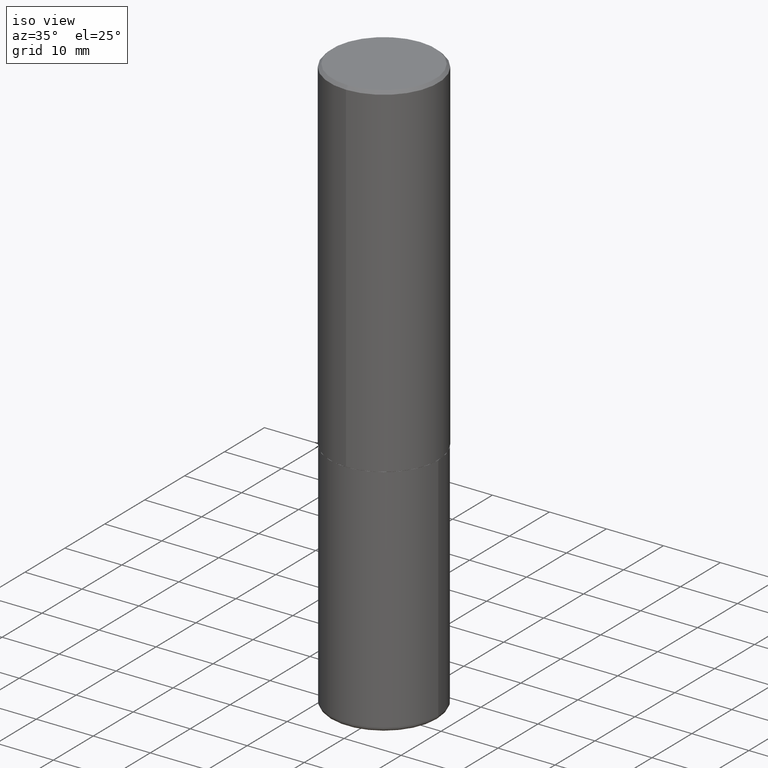
[diagram: clean part render]
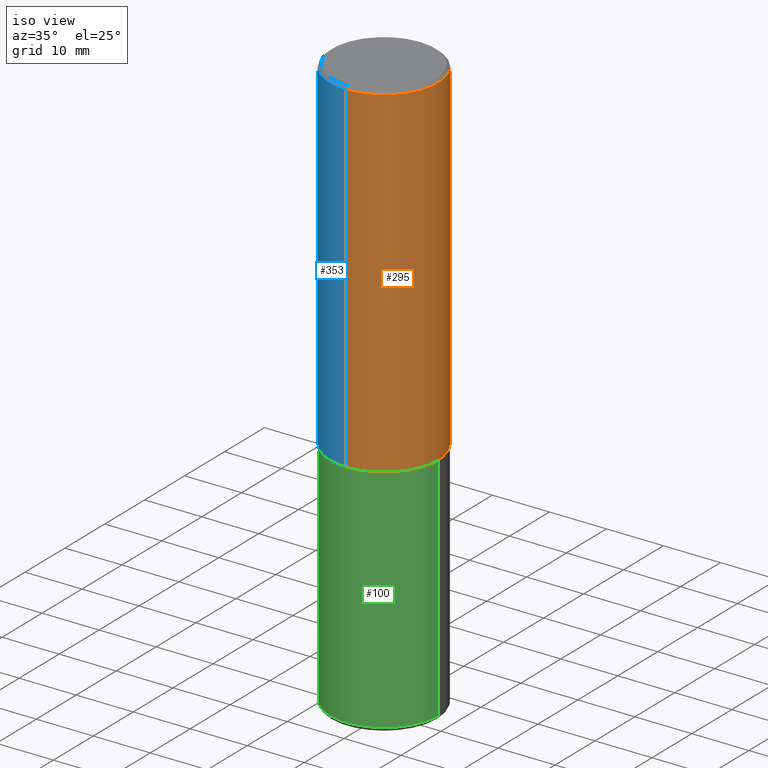
[diagram: same view with three faces highlighted in distinct colors, each labeled with its STEP entity id]
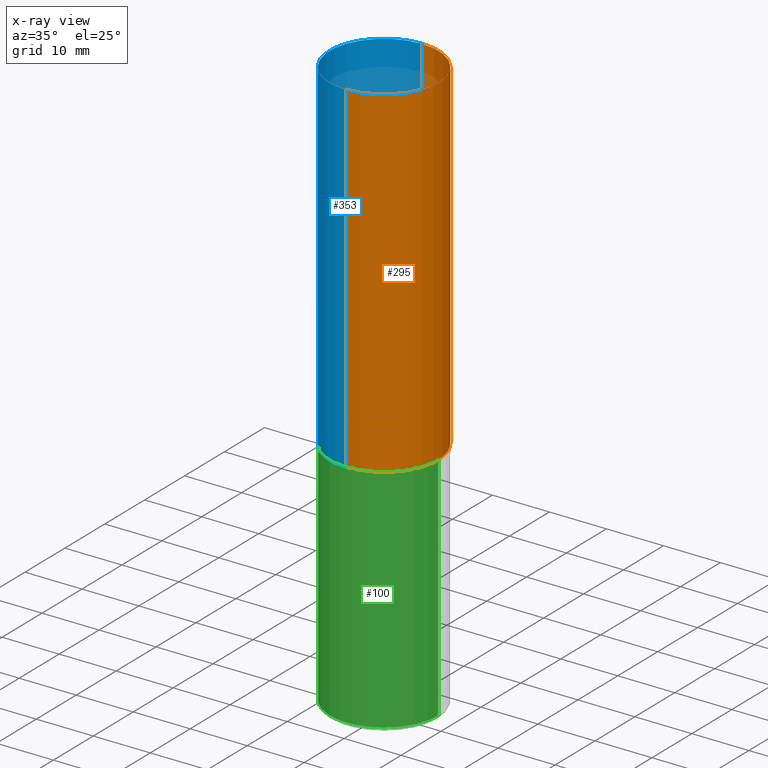
[diagram: x-ray of the same camera — body ghosted, the three highlighted faces saturated]
A machine part, iso view with three faces highlighted in distinct colors.
The next image is the same camera in x-ray (body ghosted, the three faces saturated) — at least one of them is partly hidden behind the body in this view.
Their STEP definitions:

[orange] entity #295 — the highlighted cylindrical surface (partial cylindrical patch) has radius 9.525 mm, axis along (-0, 0, 1).
#6 = VECTOR ( 'NONE', #133, 39.37007874015748143 ) ;
#10 = LINE ( 'NONE', #141, #6 ) ;
#24 = ORIENTED_EDGE ( 'NONE', *, *, #189, .T. ) ;
#30 = FACE_OUTER_BOUND ( 'NONE', #207, .T. ) ;
#37 = VECTOR ( 'NONE', #83, 39.37007874015748143 ) ;
#57 = DIRECTION ( 'NONE',  ( -6.982962677686266711E-15, -1.000000000000000000, 3.492762315123933556E-15 ) ) ;
#81 = ORIENTED_EDGE ( 'NONE', *, *, #264, .F. ) ;
#83 = DIRECTION ( 'NONE',  ( -2.444574305229161733E-29, 3.492762315123933951E-15, 1.000000000000000000 ) ) ;
#84 = ORIENTED_EDGE ( 'NONE', *, *, #303, .T. ) ;
#87 = VERTEX_POINT ( 'NONE', #270 ) ;
#131 = CARTESIAN_POINT ( 'NONE',  ( 0.000000000000000000, 0.000000000000000000, 0.000000000000000000 ) ) ;
#133 = DIRECTION ( 'NONE',  ( -2.444574305229161733E-29, 3.492762315123933951E-15, 1.000000000000000000 ) ) ;
#141 = CARTESIAN_POINT ( 'NONE',  ( -2.618611004132351200E-15, -0.3750000000000001665, 1.309785868171475725E-15 ) ) ;
#155 = AXIS2_PLACEMENT_3D ( 'NONE', #182, #284, #257 ) ;
#158 = DIRECTION ( 'NONE',  ( -2.444574305229161733E-29, 3.492762315123933951E-15, 1.000000000000000000 ) ) ;
#182 = CARTESIAN_POINT ( 'NONE',  ( 5.803419400614030161E-29, -8.291817736104219412E-15, -2.373999999999999666 ) ) ;
#189 = EDGE_CURVE ( 'NONE', #220, #87, #223, .T. ) ;
#190 = CARTESIAN_POINT ( 'NONE',  ( -2.618611004132293613E-15, -0.3750000000000085487, -2.373999999999998334 ) ) ;
#207 = EDGE_LOOP ( 'NONE', ( #84, #24, #81, #340 ) ) ;
#220 = VERTEX_POINT ( 'NONE', #407 ) ;
#223 = LINE ( 'NONE', #229, #37 ) ;
#229 = CARTESIAN_POINT ( 'NONE',  ( 2.664535259100376486E-15, 0.3750000000000001665, -1.309785868171475725E-15 ) ) ;
#249 = VERTEX_POINT ( 'NONE', #382 ) ;
#257 = DIRECTION ( 'NONE',  ( -6.982962677686266711E-15, -1.000000000000000000, 3.642463991552348591E-15 ) ) ;
#264 = EDGE_CURVE ( 'NONE', #249, #87, #301, .T. ) ;
#270 = CARTESIAN_POINT ( 'NONE',  ( 2.618611004132350411E-15, 0.3749999999999999445, -0.02000000000000141595 ) ) ;
#278 = VERTEX_POINT ( 'NONE', #190 ) ;
#284 = DIRECTION ( 'NONE',  ( -2.444574305229161733E-29, 3.492762315123933951E-15, 1.000000000000000000 ) ) ;
#295 = ADVANCED_FACE ( 'NONE', ( #30 ), #405, .T. ) ;
#296 = CARTESIAN_POINT ( 'NONE',  ( 4.889148610458350090E-31, -6.985524630247905373E-17, -0.02000000000000010797 ) ) ;
#301 = CIRCLE ( 'NONE', #322, 0.3750000000000000555 ) ;
#303 = EDGE_CURVE ( 'NONE', #278, #220, #366, .T. ) ;
#321 = AXIS2_PLACEMENT_3D ( 'NONE', #131, #345, #57 ) ;
#322 = AXIS2_PLACEMENT_3D ( 'NONE', #296, #158, #415 ) ;
#340 = ORIENTED_EDGE ( 'NONE', *, *, #397, .F. ) ;
#345 = DIRECTION ( 'NONE',  ( -2.444574305229161733E-29, 3.492762315123933951E-15, 1.000000000000000000 ) ) ;
#366 = CIRCLE ( 'NONE', #155, 0.3750000000000002776 ) ;
#382 = CARTESIAN_POINT ( 'NONE',  ( -2.572686749164323547E-15, -0.3750000000000001110, -0.01999999999999879652 ) ) ;
#397 = EDGE_CURVE ( 'NONE', #278, #249, #10, .T. ) ;
#405 = CYLINDRICAL_SURFACE ( 'NONE', #321, 0.3750000000000001665 ) ;
#407 = CARTESIAN_POINT ( 'NONE',  ( 2.664535259100406068E-15, 0.3749999999999920619, -2.374000000000001442 ) ) ;
#415 = DIRECTION ( 'NONE',  ( -6.982962677686265922E-15, -1.000000000000000000, 3.494488891895536035E-15 ) ) ;

[blue] entity #353 — the highlighted cylindrical surface (partial cylindrical patch) has radius 9.525 mm, axis along (-0, 0, 1).
#6 = VECTOR ( 'NONE', #133, 39.37007874015748143 ) ;
#8 = FACE_OUTER_BOUND ( 'NONE', #311, .T. ) ;
#10 = LINE ( 'NONE', #141, #6 ) ;
#11 = EDGE_CURVE ( 'NONE', #87, #249, #285, .T. ) ;
#37 = VECTOR ( 'NONE', #83, 39.37007874015748143 ) ;
#45 = CARTESIAN_POINT ( 'NONE',  ( 0.000000000000000000, 0.000000000000000000, 0.000000000000000000 ) ) ;
#74 = ORIENTED_EDGE ( 'NONE', *, *, #240, .T. ) ;
#83 = DIRECTION ( 'NONE',  ( -2.444574305229161733E-29, 3.492762315123933951E-15, 1.000000000000000000 ) ) ;
#87 = VERTEX_POINT ( 'NONE', #270 ) ;
#93 = CARTESIAN_POINT ( 'NONE',  ( 4.889148610458350090E-31, -6.985524630247905373E-17, -0.02000000000000010797 ) ) ;
#94 = DIRECTION ( 'NONE',  ( -6.982962677686266711E-15, -1.000000000000000000, 3.642463991552348591E-15 ) ) ;
#107 = DIRECTION ( 'NONE',  ( -6.982962677686266711E-15, -1.000000000000000000, 3.492762315123933556E-15 ) ) ;
#120 = CARTESIAN_POINT ( 'NONE',  ( 5.803419400614030161E-29, -8.291817736104219412E-15, -2.373999999999999666 ) ) ;
#133 = DIRECTION ( 'NONE',  ( -2.444574305229161733E-29, 3.492762315123933951E-15, 1.000000000000000000 ) ) ;
#141 = CARTESIAN_POINT ( 'NONE',  ( -2.618611004132351200E-15, -0.3750000000000001665, 1.309785868171475725E-15 ) ) ;
#189 = EDGE_CURVE ( 'NONE', #220, #87, #223, .T. ) ;
#190 = CARTESIAN_POINT ( 'NONE',  ( -2.618611004132293613E-15, -0.3750000000000085487, -2.373999999999998334 ) ) ;
#191 = AXIS2_PLACEMENT_3D ( 'NONE', #45, #392, #107 ) ;
#199 = CIRCLE ( 'NONE', #276, 0.3750000000000002776 ) ;
#220 = VERTEX_POINT ( 'NONE', #407 ) ;
#223 = LINE ( 'NONE', #229, #37 ) ;
#226 = DIRECTION ( 'NONE',  ( -6.982962677686265922E-15, -1.000000000000000000, 3.494488891895536035E-15 ) ) ;
#229 = CARTESIAN_POINT ( 'NONE',  ( 2.664535259100376486E-15, 0.3750000000000001665, -1.309785868171475725E-15 ) ) ;
#240 = EDGE_CURVE ( 'NONE', #220, #278, #199, .T. ) ;
#249 = VERTEX_POINT ( 'NONE', #382 ) ;
#258 = DIRECTION ( 'NONE',  ( -2.444574305229161733E-29, 3.492762315123933951E-15, 1.000000000000000000 ) ) ;
#270 = CARTESIAN_POINT ( 'NONE',  ( 2.618611004132350411E-15, 0.3749999999999999445, -0.02000000000000141595 ) ) ;
#276 = AXIS2_PLACEMENT_3D ( 'NONE', #120, #258, #94 ) ;
#278 = VERTEX_POINT ( 'NONE', #190 ) ;
#285 = CIRCLE ( 'NONE', #349, 0.3750000000000000555 ) ;
#288 = ORIENTED_EDGE ( 'NONE', *, *, #189, .F. ) ;
#311 = EDGE_LOOP ( 'NONE', ( #288, #74, #332, #367 ) ) ;
#332 = ORIENTED_EDGE ( 'NONE', *, *, #397, .T. ) ;
#349 = AXIS2_PLACEMENT_3D ( 'NONE', #93, #413, #226 ) ;
#353 = ADVANCED_FACE ( 'NONE', ( #8 ), #357, .T. ) ;
#357 = CYLINDRICAL_SURFACE ( 'NONE', #191, 0.3750000000000001665 ) ;
#367 = ORIENTED_EDGE ( 'NONE', *, *, #11, .F. ) ;
#382 = CARTESIAN_POINT ( 'NONE',  ( -2.572686749164323547E-15, -0.3750000000000001110, -0.01999999999999879652 ) ) ;
#392 = DIRECTION ( 'NONE',  ( -2.444574305229161733E-29, 3.492762315123933951E-15, 1.000000000000000000 ) ) ;
#397 = EDGE_CURVE ( 'NONE', #278, #249, #10, .T. ) ;
#407 = CARTESIAN_POINT ( 'NONE',  ( 2.664535259100406068E-15, 0.3749999999999920619, -2.374000000000001442 ) ) ;
#413 = DIRECTION ( 'NONE',  ( -2.444574305229161733E-29, 3.492762315123933951E-15, 1.000000000000000000 ) ) ;

[green] entity #100 — the highlighted cylindrical surface (partial cylindrical patch) has radius 9.525 mm, axis along (-0, 0, 1).
#4 = CARTESIAN_POINT ( 'NONE',  ( 0.000000000000000000, 0.000000000000000000, 0.000000000000000000 ) ) ;
#23 = DIRECTION ( 'NONE',  ( -2.445468806185136597E-29, 3.491481338843145583E-15, 1.000000000000000000 ) ) ;
#40 = CARTESIAN_POINT ( 'NONE',  ( -0.3749999999999999445, -1.119664565610691011E-14, -3.969999999999999307 ) ) ;
#50 = VERTEX_POINT ( 'NONE', #40 ) ;
#52 = CIRCLE ( 'NONE', #320, 0.3750000000000000555 ) ;
#92 = CIRCLE ( 'NONE', #124, 0.3750000000000000555 ) ;
#98 = DIRECTION ( 'NONE',  ( -2.445468806185136597E-29, 3.491481338843145583E-15, 1.000000000000000000 ) ) ;
#100 = ADVANCED_FACE ( 'NONE', ( #389 ), #263, .T. ) ;
#113 = VERTEX_POINT ( 'NONE', #267 ) ;
#124 = AXIS2_PLACEMENT_3D ( 'NONE', #280, #23, #237 ) ;
#127 = DIRECTION ( 'NONE',  ( 1.000000000000000000, -6.982962677686266711E-15, 0.000000000000000000 ) ) ;
#159 = EDGE_CURVE ( 'NONE', #113, #306, #92, .T. ) ;
#188 = CARTESIAN_POINT ( 'NONE',  ( 0.3750000000000000555, -2.618611004132350016E-15, 1.828566290923476203E-29 ) ) ;
#193 = DIRECTION ( 'NONE',  ( -2.445468806185136877E-29, 3.491481338843145188E-15, 1.000000000000000000 ) ) ;
#195 = ORIENTED_EDGE ( 'NONE', *, *, #159, .F. ) ;
#197 = EDGE_CURVE ( 'NONE', #255, #306, #290, .T. ) ;
#201 = DIRECTION ( 'NONE',  ( 1.000000000000000000, -6.982962677686265922E-15, 4.876176775795935793E-29 ) ) ;
#206 = EDGE_CURVE ( 'NONE', #50, #113, #268, .T. ) ;
#225 = CARTESIAN_POINT ( 'NONE',  ( -0.3750000000000000555, 2.664535259100376091E-15, -1.844600658845589598E-29 ) ) ;
#237 = DIRECTION ( 'NONE',  ( 1.000000000000000000, -6.982962677686266711E-15, 0.000000000000000000 ) ) ;
#243 = ORIENTED_EDGE ( 'NONE', *, *, #197, .T. ) ;
#244 = EDGE_CURVE ( 'NONE', #50, #255, #52, .T. ) ;
#246 = DIRECTION ( 'NONE',  ( -2.445468806185136877E-29, 3.491481338843145188E-15, 1.000000000000000000 ) ) ;
#255 = VERTEX_POINT ( 'NONE', #262 ) ;
#260 = AXIS2_PLACEMENT_3D ( 'NONE', #4, #98, #201 ) ;
#262 = CARTESIAN_POINT ( 'NONE',  ( 0.3749999999999999445, -1.647979191933963740E-14, -3.969999999999999307 ) ) ;
#263 = CYLINDRICAL_SURFACE ( 'NONE', #260, 0.3750000000000000555 ) ;
#267 = CARTESIAN_POINT ( 'NONE',  ( -0.3750000000000000555, -8.412189288379502265E-15, -2.375000000000000000 ) ) ;
#268 = LINE ( 'NONE', #225, #396 ) ;
#280 = CARTESIAN_POINT ( 'NONE',  ( 5.807988414689699417E-29, -8.292268179752470118E-15, -2.375000000000000000 ) ) ;
#290 = LINE ( 'NONE', #188, #327 ) ;
#306 = VERTEX_POINT ( 'NONE', #377 ) ;
#320 = AXIS2_PLACEMENT_3D ( 'NONE', #414, #381, #127 ) ;
#327 = VECTOR ( 'NONE', #246, 39.37007874015748143 ) ;
#369 = EDGE_LOOP ( 'NONE', ( #375, #401, #243, #195 ) ) ;
#375 = ORIENTED_EDGE ( 'NONE', *, *, #206, .F. ) ;
#377 = CARTESIAN_POINT ( 'NONE',  ( 0.3750000000000000555, -1.091087918388482013E-14, -2.375000000000000000 ) ) ;
#381 = DIRECTION ( 'NONE',  ( -2.445468806185136597E-29, 3.491481338843145583E-15, 1.000000000000000000 ) ) ;
#389 = FACE_OUTER_BOUND ( 'NONE', #369, .T. ) ;
#396 = VECTOR ( 'NONE', #193, 39.37007874015748143 ) ;
#401 = ORIENTED_EDGE ( 'NONE', *, *, #244, .T. ) ;
#414 = CARTESIAN_POINT ( 'NONE',  ( 9.708511160554990630E-29, -1.386118091520728581E-14, -3.969999999999999307 ) ) ;